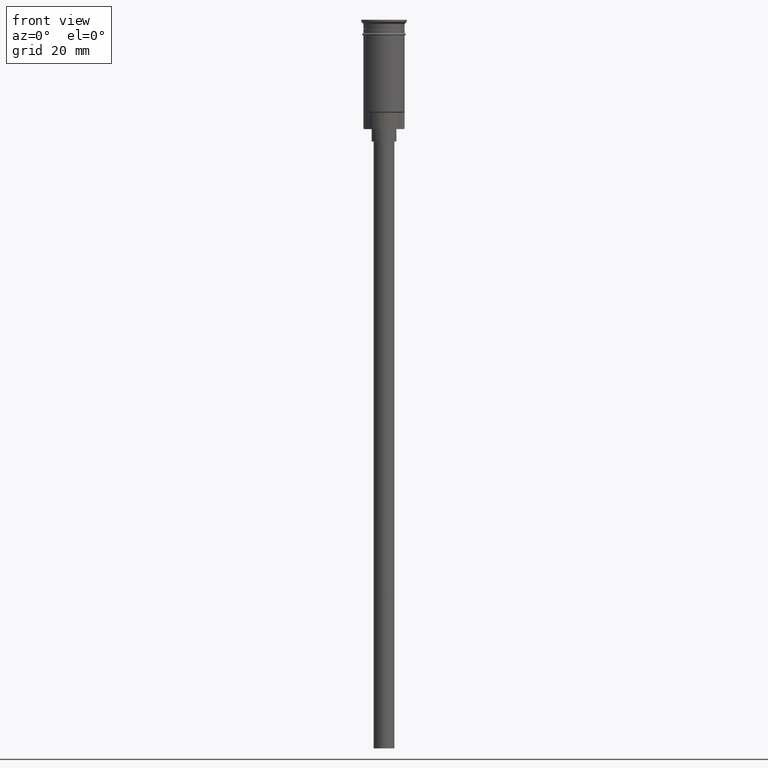
[diagram: clean part render]
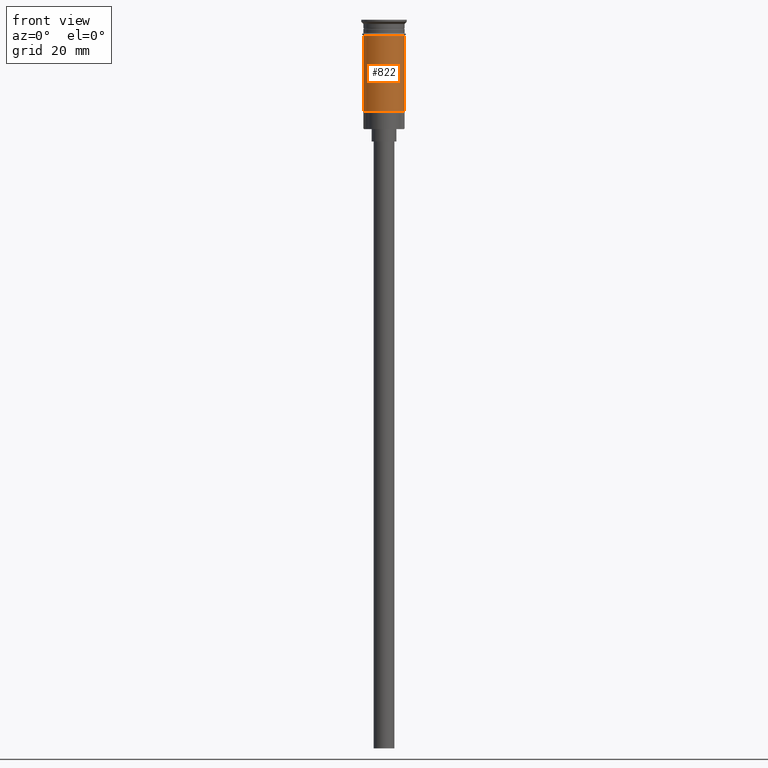
[diagram: same view with one face highlighted and labeled with its STEP entity id]
A machine part, front view. The second image highlights one B-rep face of the part: STEP entity #822.
In plain terms, the highlighted cylindrical surface (edge-blend (fillet) strip) has radius 5 mm, axis along (-0, -0, 1).
Its self-contained STEP definition (entity closure, byte-faithful):
#4 = CARTESIAN_POINT ( 'NONE',  ( -4.999999999999996447, 6.123233995736762338E-16, 0.000000000000000000 ) ) ;
#8 = DIRECTION ( 'NONE',  ( -0.000000000000000000, -0.000000000000000000, 1.000000000000000000 ) ) ;
#18 = AXIS2_PLACEMENT_3D ( 'NONE', #688, #1528, #180 ) ;
#29 = VERTEX_POINT ( 'NONE', #1506 ) ;
#113 = ORIENTED_EDGE ( 'NONE', *, *, #332, .F. ) ;
#136 = FACE_OUTER_BOUND ( 'NONE', #896, .T. ) ;
#180 = DIRECTION ( 'NONE',  ( -1.000000000000000000, 0.000000000000000000, 0.000000000000000000 ) ) ;
#293 = AXIS2_PLACEMENT_3D ( 'NONE', #1133, #396, #1374 ) ;
#332 = EDGE_CURVE ( 'NONE', #1439, #727, #423, .T. ) ;
#396 = DIRECTION ( 'NONE',  ( -0.000000000000000000, -0.000000000000000000, 1.000000000000000000 ) ) ;
#416 = VERTEX_POINT ( 'NONE', #735 ) ;
#423 = CIRCLE ( 'NONE', #1297, 4.999999999999999112 ) ;
#449 = DIRECTION ( 'NONE',  ( -0.000000000000000000, -0.000000000000000000, 1.000000000000000000 ) ) ;
#493 = EDGE_CURVE ( 'NONE', #416, #727, #1544, .T. ) ;
#575 = CARTESIAN_POINT ( 'NONE',  ( 4.999999999999996447, 0.000000000000000000, 0.000000000000000000 ) ) ;
#688 = CARTESIAN_POINT ( 'NONE',  ( 0.000000000000000000, 0.000000000000000000, -22.30000000000001137 ) ) ;
#726 = CIRCLE ( 'NONE', #18, 4.999999999999996447 ) ;
#727 = VERTEX_POINT ( 'NONE', #883 ) ;
#735 = CARTESIAN_POINT ( 'NONE',  ( 4.999999999999996447, 6.123233995736761352E-16, -22.30000000000001137 ) ) ;
#815 = CARTESIAN_POINT ( 'NONE',  ( 0.000000000000000000, 0.000000000000000000, -3.799999999999998934 ) ) ;
#822 = ADVANCED_FACE ( 'NONE', ( #136 ), #1161, .T. ) ;
#879 = VECTOR ( 'NONE', #8, 1000.000000000000000 ) ;
#883 = CARTESIAN_POINT ( 'NONE',  ( 4.999999999999999112, 0.000000000000000000, -3.799999999999998934 ) ) ;
#896 = EDGE_LOOP ( 'NONE', ( #914, #1590, #930, #113 ) ) ;
#914 = ORIENTED_EDGE ( 'NONE', *, *, #1148, .F. ) ;
#930 = ORIENTED_EDGE ( 'NONE', *, *, #493, .T. ) ;
#1024 = DIRECTION ( 'NONE',  ( -0.000000000000000000, -0.000000000000000000, 1.000000000000000000 ) ) ;
#1133 = CARTESIAN_POINT ( 'NONE',  ( 0.000000000000000000, 0.000000000000000000, 0.000000000000000000 ) ) ;
#1148 = EDGE_CURVE ( 'NONE', #29, #1439, #1257, .T. ) ;
#1161 = CYLINDRICAL_SURFACE ( 'NONE', #293, 4.999999999999996447 ) ;
#1242 = VECTOR ( 'NONE', #449, 1000.000000000000000 ) ;
#1257 = LINE ( 'NONE', #4, #879 ) ;
#1297 = AXIS2_PLACEMENT_3D ( 'NONE', #815, #1024, #1401 ) ;
#1305 = EDGE_CURVE ( 'NONE', #29, #416, #726, .T. ) ;
#1365 = CARTESIAN_POINT ( 'NONE',  ( -4.999999999999999112, 6.123233995736765296E-16, -3.799999999999998934 ) ) ;
#1374 = DIRECTION ( 'NONE',  ( 1.000000000000000000, 0.000000000000000000, 0.000000000000000000 ) ) ;
#1401 = DIRECTION ( 'NONE',  ( 1.000000000000000000, 0.000000000000000000, 0.000000000000000000 ) ) ;
#1439 = VERTEX_POINT ( 'NONE', #1365 ) ;
#1506 = CARTESIAN_POINT ( 'NONE',  ( -4.999999999999993783, 0.000000000000000000, -22.30000000000001137 ) ) ;
#1528 = DIRECTION ( 'NONE',  ( -0.000000000000000000, -0.000000000000000000, 1.000000000000000000 ) ) ;
#1544 = LINE ( 'NONE', #575, #1242 ) ;
#1590 = ORIENTED_EDGE ( 'NONE', *, *, #1305, .T. ) ;